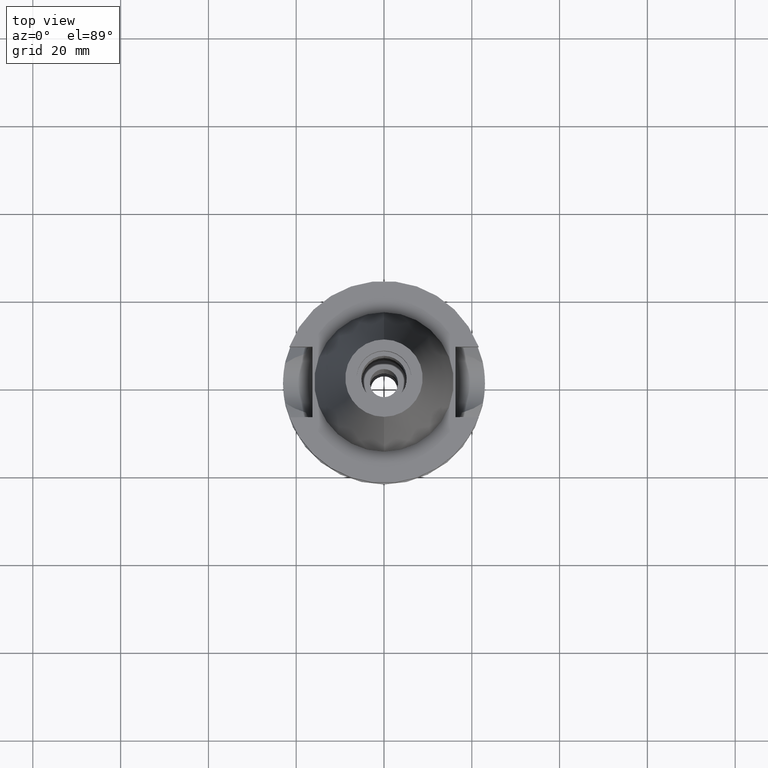
[diagram: clean part render]
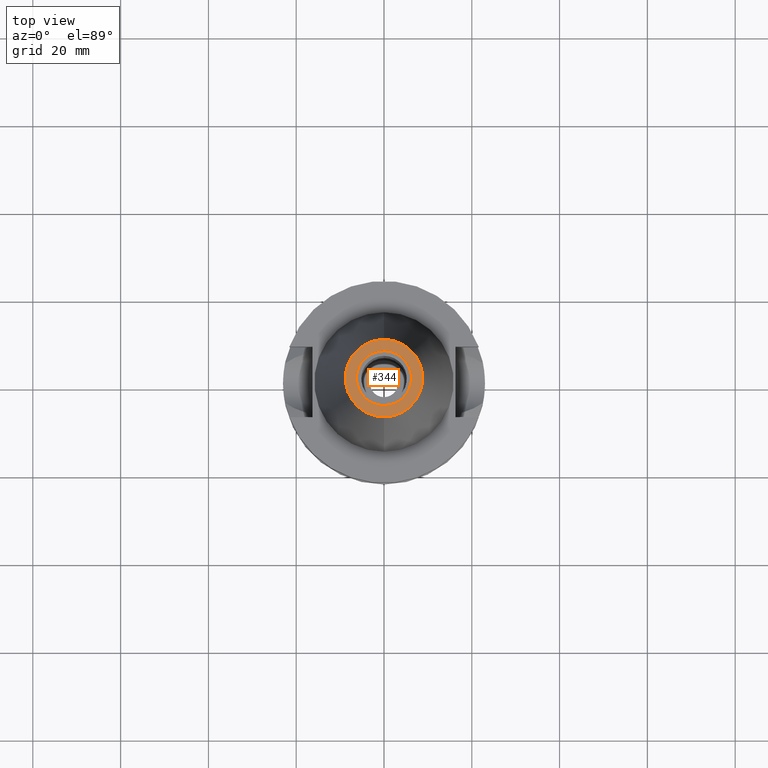
[diagram: same view with one face highlighted and labeled with its STEP entity id]
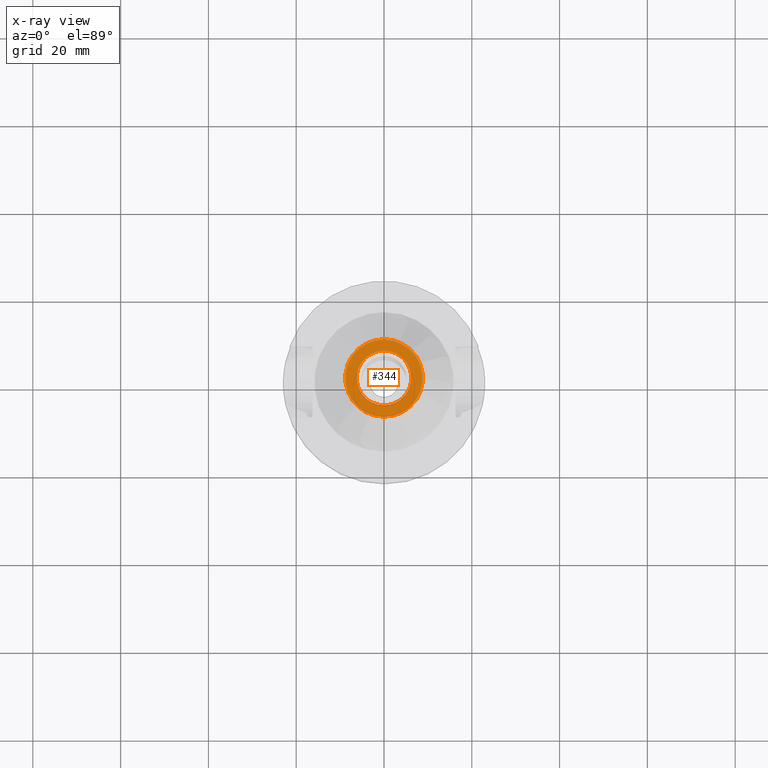
[diagram: x-ray of the same camera — body ghosted, the highlighted face saturated]
A machine part, top view. The second image highlights one B-rep face of the part: STEP entity #344.
The next image is the same camera in x-ray: the body ghosted, the highlighted face saturated — about 0% of this face is hidden behind the body in this view.
In plain terms, the highlighted planar face has unit normal (0, 0, -1).
Its self-contained STEP definition (entity closure, byte-faithful):
#126 = DIRECTION ( 'NONE',  ( 0.0000000000000000000, 0.0000000000000000000, 1.000000000000000000 ) ) ;
#153 = ORIENTED_EDGE ( 'NONE', *, *, #727, .F. ) ;
#253 = CARTESIAN_POINT ( 'NONE',  ( 0.0000000000000000000, 6.250000000000000000, 48.39999999999999858 ) ) ;
#294 = FACE_BOUND ( 'NONE', #1877, .T. ) ;
#312 = CARTESIAN_POINT ( 'NONE',  ( 0.0000000000000000000, 1.908856965831000054E-14, 48.39999999999999858 ) ) ;
#344 = ADVANCED_FACE ( 'NONE', ( #2083, #294 ), #1409, .F. ) ;
#363 = CARTESIAN_POINT ( 'NONE',  ( 0.0000000000000000000, -8.816791732783000768, 48.39999999999999858 ) ) ;
#379 = EDGE_CURVE ( 'NONE', #994, #2024, #919, .T. ) ;
#397 = EDGE_CURVE ( 'NONE', #2024, #994, #2853, .T. ) ;
#426 = AXIS2_PLACEMENT_3D ( 'NONE', #1098, #126, #2795 ) ;
#490 = DIRECTION ( 'NONE',  ( 0.0000000000000000000, 0.0000000000000000000, -1.000000000000000000 ) ) ;
#522 = EDGE_LOOP ( 'NONE', ( #1312, #153 ) ) ;
#727 = EDGE_CURVE ( 'NONE', #1182, #2806, #2344, .T. ) ;
#758 = CARTESIAN_POINT ( 'NONE',  ( 0.0000000000000000000, 1.521011324540999938E-14, 48.39999999999999858 ) ) ;
#918 = CARTESIAN_POINT ( 'NONE',  ( 0.0000000000000000000, 1.817375849934999910E-14, 48.39999999999999858 ) ) ;
#919 = CIRCLE ( 'NONE', #2031, 6.250000000000000000 ) ;
#994 = VERTEX_POINT ( 'NONE', #253 ) ;
#1072 = AXIS2_PLACEMENT_3D ( 'NONE', #758, #1241, #1175 ) ;
#1098 = CARTESIAN_POINT ( 'NONE',  ( 0.0000000000000000000, 1.908856965831000054E-14, 48.39999999999999858 ) ) ;
#1164 = CARTESIAN_POINT ( 'NONE',  ( 0.0000000000000000000, 1.521011324540999938E-14, 48.39999999999999858 ) ) ;
#1175 = DIRECTION ( 'NONE',  ( 0.0000000000000000000, -1.000000000000000000, 0.0000000000000000000 ) ) ;
#1180 = ORIENTED_EDGE ( 'NONE', *, *, #379, .F. ) ;
#1182 = VERTEX_POINT ( 'NONE', #363 ) ;
#1241 = DIRECTION ( 'NONE',  ( 0.0000000000000000000, 0.0000000000000000000, -1.000000000000000000 ) ) ;
#1312 = ORIENTED_EDGE ( 'NONE', *, *, #2879, .F. ) ;
#1391 = DIRECTION ( 'NONE',  ( 0.0000000000000000000, -1.000000000000000000, 0.0000000000000000000 ) ) ;
#1409 = PLANE ( 'NONE',  #1637 ) ;
#1485 = CARTESIAN_POINT ( 'NONE',  ( 0.0000000000000000000, -6.250000000000000000, 48.39999999999999858 ) ) ;
#1619 = DIRECTION ( 'NONE',  ( 0.0000000000000000000, 1.000000000000000000, 0.0000000000000000000 ) ) ;
#1637 = AXIS2_PLACEMENT_3D ( 'NONE', #918, #490, #1391 ) ;
#1854 = DIRECTION ( 'NONE',  ( 0.0000000000000000000, 0.0000000000000000000, 1.000000000000000000 ) ) ;
#1877 = EDGE_LOOP ( 'NONE', ( #1180, #2792 ) ) ;
#1904 = AXIS2_PLACEMENT_3D ( 'NONE', #1164, #2731, #2185 ) ;
#2024 = VERTEX_POINT ( 'NONE', #1485 ) ;
#2031 = AXIS2_PLACEMENT_3D ( 'NONE', #312, #1854, #1619 ) ;
#2083 = FACE_OUTER_BOUND ( 'NONE', #522, .T. ) ;
#2185 = DIRECTION ( 'NONE',  ( 0.0000000000000000000, 1.000000000000000000, 0.0000000000000000000 ) ) ;
#2344 = CIRCLE ( 'NONE', #1072, 8.816791732783000768 ) ;
#2731 = DIRECTION ( 'NONE',  ( 0.0000000000000000000, 0.0000000000000000000, -1.000000000000000000 ) ) ;
#2792 = ORIENTED_EDGE ( 'NONE', *, *, #397, .F. ) ;
#2795 = DIRECTION ( 'NONE',  ( 0.0000000000000000000, -1.000000000000000000, 0.0000000000000000000 ) ) ;
#2806 = VERTEX_POINT ( 'NONE', #2807 ) ;
#2807 = CARTESIAN_POINT ( 'NONE',  ( 0.0000000000000000000, 8.816791732783000768, 48.39999999999999858 ) ) ;
#2853 = CIRCLE ( 'NONE', #426, 6.250000000000000000 ) ;
#2870 = CIRCLE ( 'NONE', #1904, 8.816791732783000768 ) ;
#2879 = EDGE_CURVE ( 'NONE', #2806, #1182, #2870, .T. ) ;